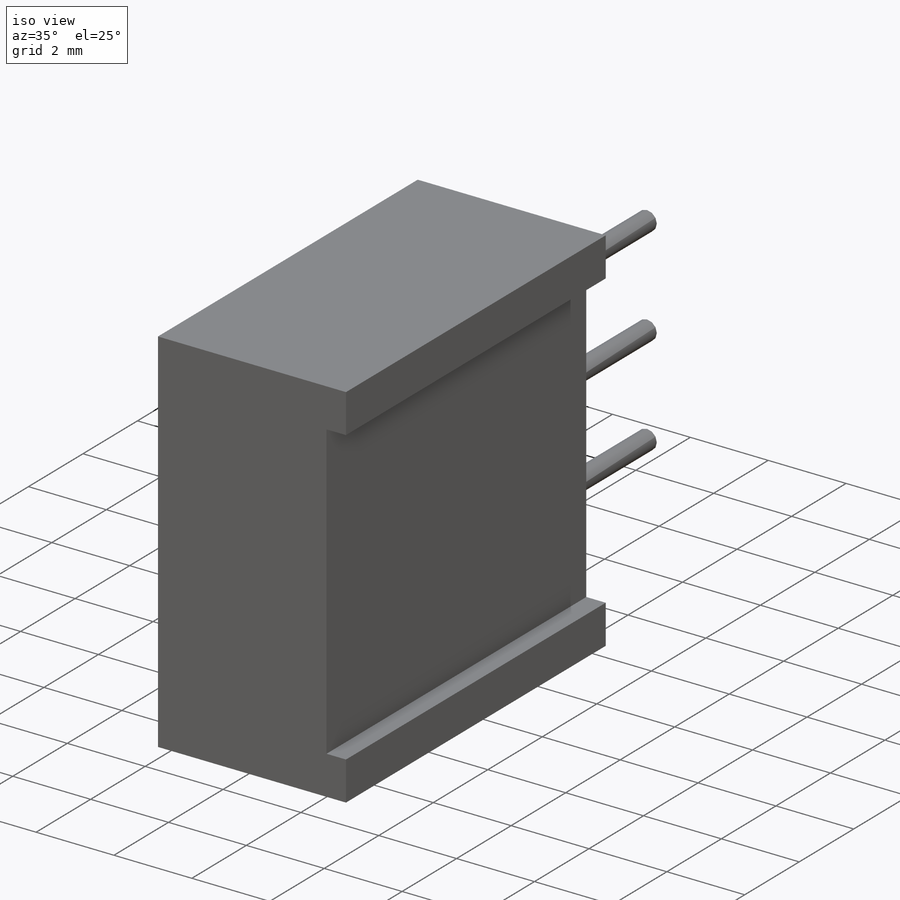
[diagram: iso view]
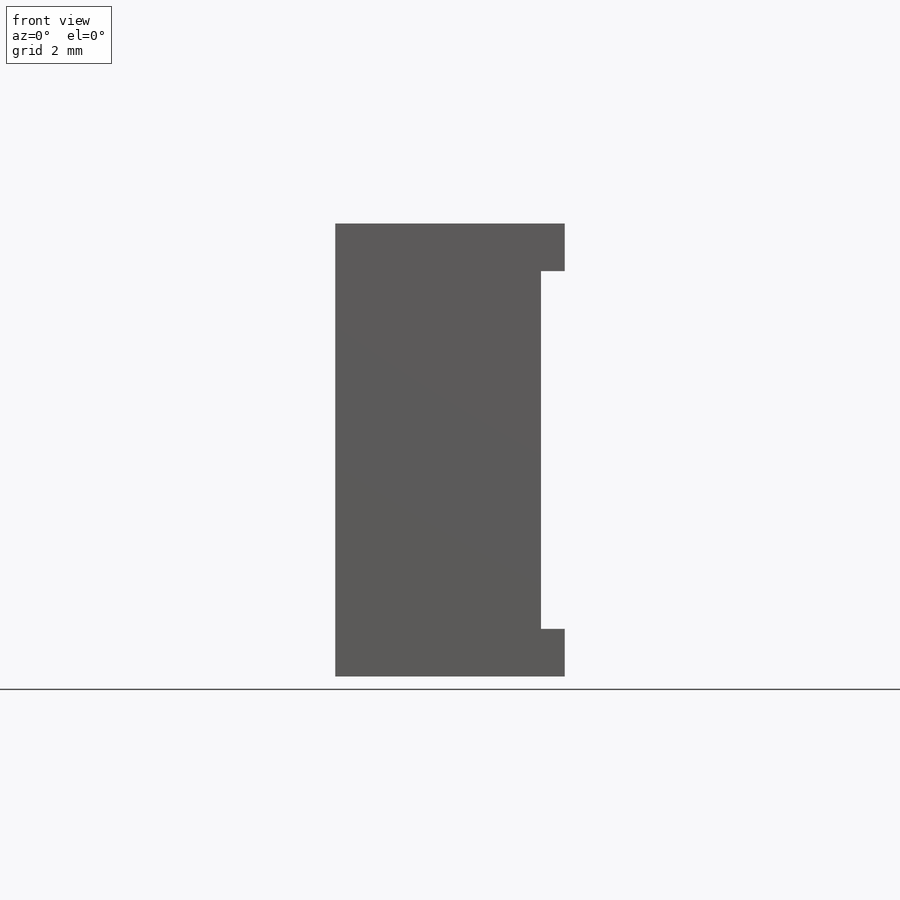
[diagram: front view]
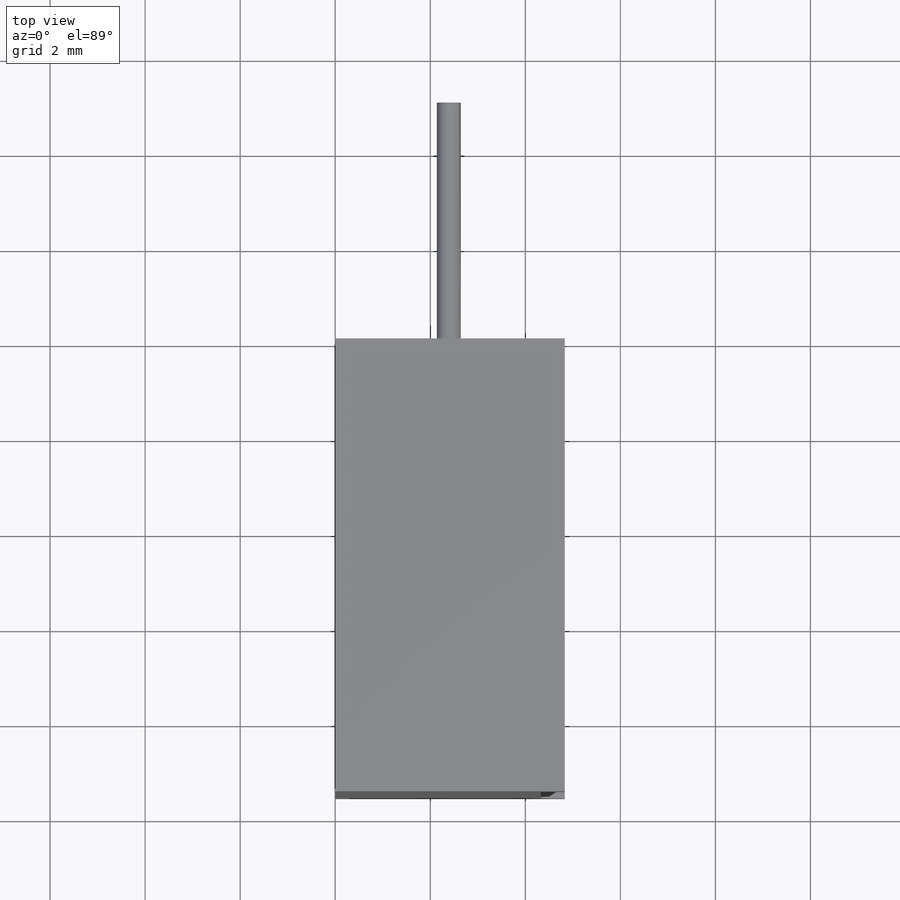
[diagram: top view]
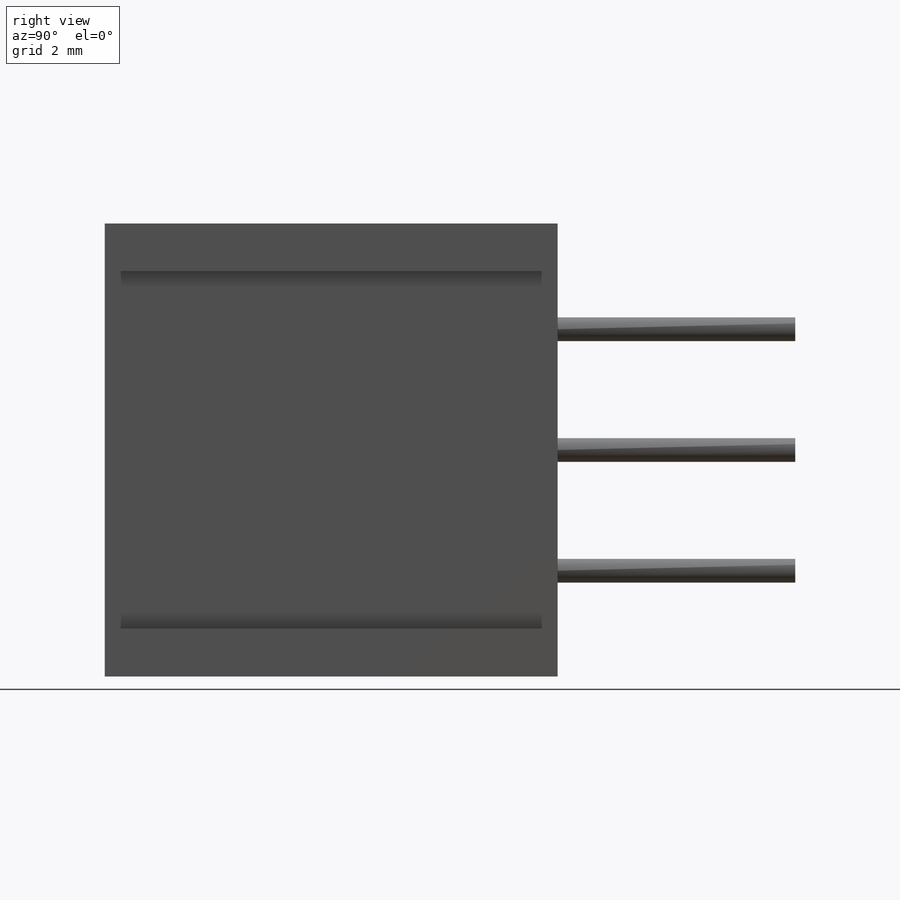
[diagram: right view]
SOLIDWORKS PART (.sldprt)
format: sldprt  version: not decoded by parser v0  size: 231,424 bytes
history: native  units: mm
features: sketch x6, cut_extrude x3, extrude x2, material x1, plane x1 (+12 scaffold rows collapsed)
feature tree (25):
  scaffold x12  (default folders/planes/origin — collapsed)
  material  "Material <not specified>"
  sketch  "Sketch1"  dims[D1=9.53mm]
  extrude  "Basic Shape"  Depth=4.83mm
  sketch  "Sketch3"  dims[D1=4.0mm]
  cut_extrude  "Adjuster"  Depth=0.1mm
  sketch  "Sketch4"  dims[c1.D2=4.0mm c1.D1=1.0mm c2.D2=~3.872983mm c3.D2=45.0deg]
  cut_extrude  "Adjuster Slot"  Depth=1mm
  sketch  "Sketch5"  dims[c1.D4=0.5mm c1.D1=2.44mm c1.D2=2.54mm c1.D3=2.54mm c2.D1=1.4mm c2.D2=2.45mm c2.D3=2.54mm c2.D5=2.54mm c3.D1=2.44mm]
  extrude  "Pins"  Depth=5mm
  sketch  "Sketch6"  dims[D1=0.5mm D2=1.0mm D3=1.0mm]
  cut_extrude  "Rear Relief"  [1 undecoded]
  plane  "Board Plane"  Offset=1mm
  sketch  "Component_Outline"
decode coverage: 9 of 11 modeling features carry decoded parameters
note: ~ marks probable driven/reference dimensions
note: 1 parameter value undecoded
note: suppression state not decoded; provenance and decode notes live in map.json
